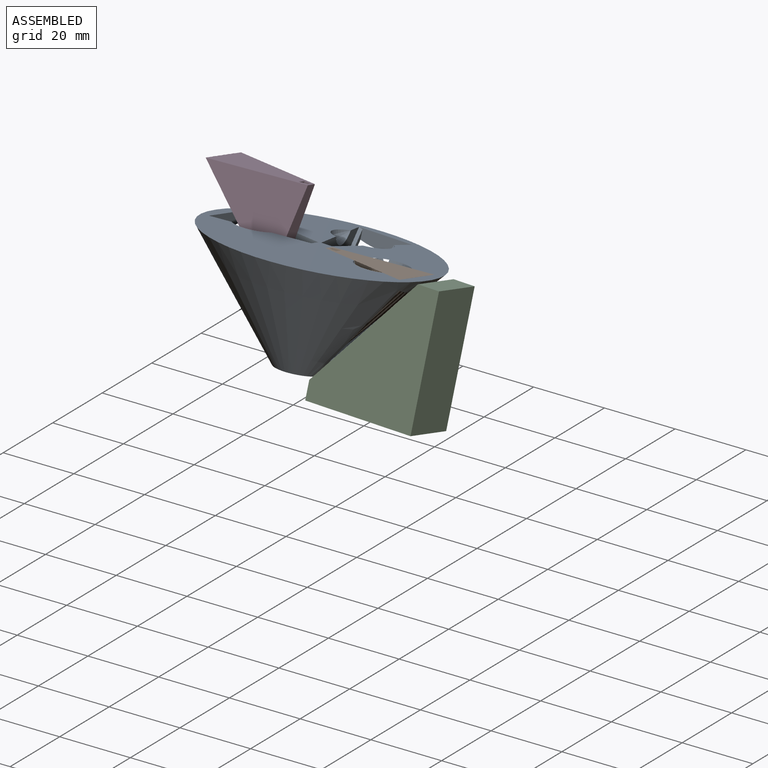
[diagram: assembled view]
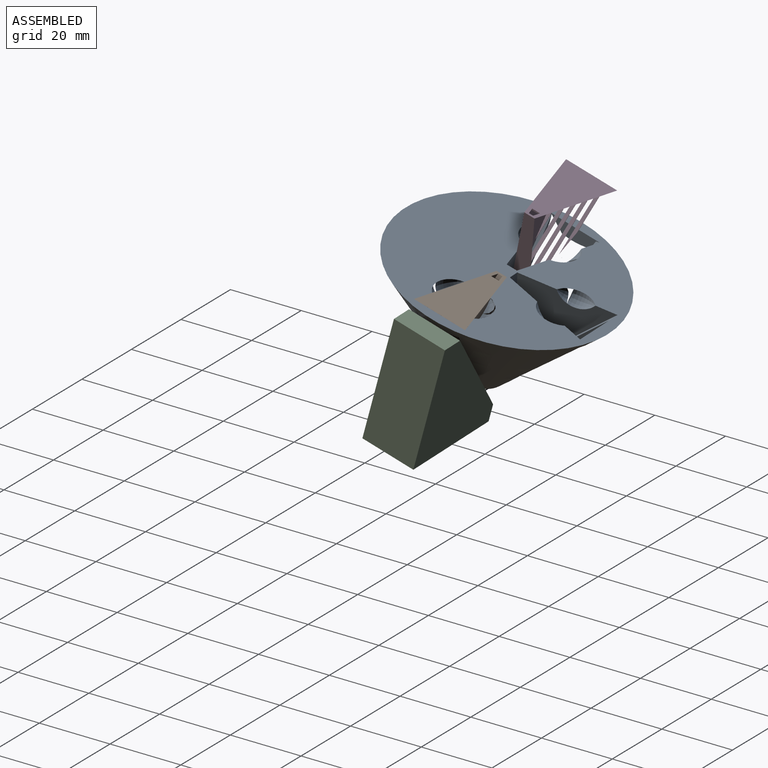
[diagram: assembled view, second angle]
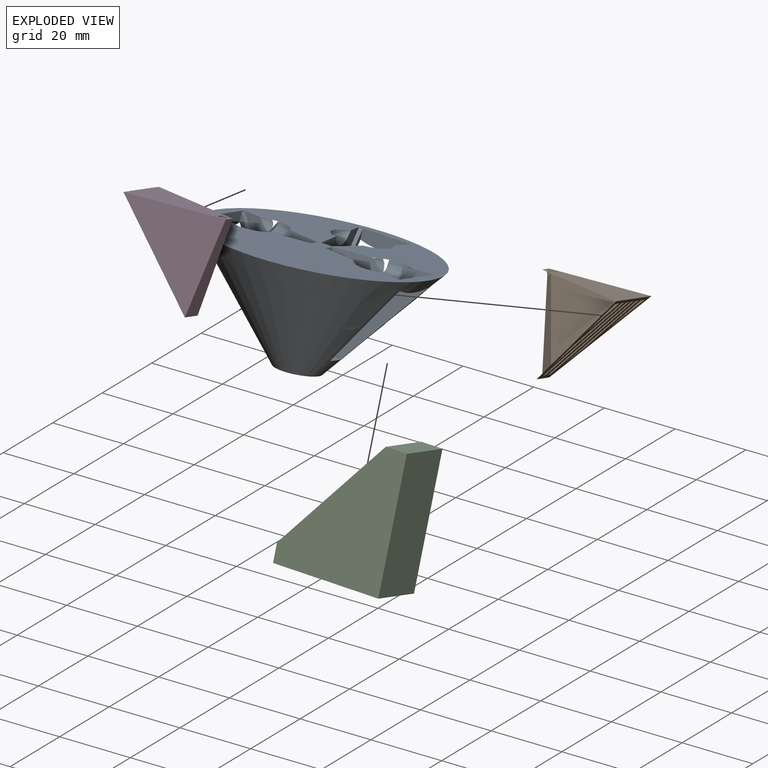
[diagram: exploded view]
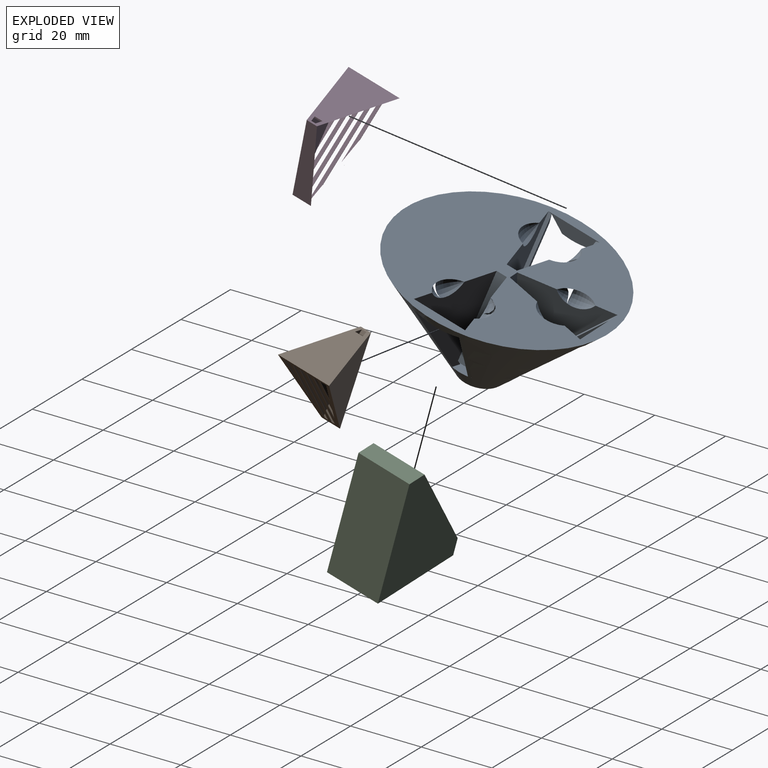
[diagram: exploded view, second angle]
ASSEMBLY  parts=4 mates=5
PART A: 42 faces, bbox 68.9x68.9x41.8 mm
  f0: plane 25x25mm, normal (-0.23,-0.97,0), area 301.2mm2, adj f9,f15,f22,f39
  f1: plane 25x25mm, normal (0.97,0.23,0), area 301.2mm2, adj f9,f17,f21,f33
  f2: plane 18.3x7.03mm, normal (0,-1,0), area 44.7mm2, adj f8,f9,f30,f31,f32,f33,f34,f35
  f3: plane 25x25mm, normal (-0.97,0.23,0), area 301.2mm2, adj f9,f18,f21,f30
  f4: plane 25x25mm, normal (0.23,0.97,0), area 301.2mm2, adj f9,f20,f23,f27
  f5: plane 18.3x7.03mm, normal (-1,0,0), area 44.7mm2, adj f8,f9,f24,f25,f26,f27,f28,f29
  f6: plane 25x25mm, normal (0.23,-0.97,0), area 301.2mm2, adj f9,f19,f23,f25
  f7: plane 6.57x3mm, normal (0,0,1), area 12.1mm2, adj f8,f22,f36,f37,f38,f39,f40,f41
  f8: cone r=30mm half-angle=38.7deg, axis (0,0,1), area 3377.1mm2, adj f2,f5,f7,f9,f10,f11,f13,f14
  f9: plane 68.93x68.93mm, normal (0,0,1), area 2031.4mm2, adj f0,f1,f2,f3,f4,f5,f6,f8
  f10: plane 12x12mm, normal (0,0,-1), area 113.1mm2, adj f8
  f11: plane 15.84x4.58mm, normal (1,0,0), area 44.7mm2, adj f8,f9,f36,f37,f38,f39,f40,f41
  f12: plane 25x25mm, normal (-0.23,0.97,0), area 301.2mm2, adj f9,f16,f22,f37
  f13: plane 6.57x3mm, normal (0,0,1), area 12.1mm2, adj f8,f21,f30,f31,f32,f33,f34,f35
  f14: plane 6.57x3mm, normal (0,0,1), area 12.1mm2, adj f8,f23,f24,f25,f26,f27,f28,f29
  f15: revolved ~9.72x5.86mm, area 69.4mm2, adj f0,f9
  f16: revolved ~9.72x5.86mm, area 71.7mm2, adj f9,f12
  f17: revolved ~9.72x5.86mm, area 71.7mm2, adj f1,f9
  f18: revolved ~9.72x5.86mm, area 69.4mm2, adj f3,f9
  f19: revolved ~9.72x5.86mm, area 71.7mm2, adj f6,f9
  f20: revolved ~9.72x5.86mm, area 69.4mm2, adj f4,f9
  f21: plane 25x5.4mm, normal (0,0.98,0.2), area 107.1mm2, adj f1,f3,f9,f13
  f22: plane 25x5.4mm, normal (-0.98,0,0.2), area 107.1mm2, adj f0,f7,f9,f12
  f23: plane 25x5.4mm, normal (0.98,0,0.2), area 107.1mm2, adj f4,f6,f9,f14
  f24: plane 23.1x18.13mm, normal (0.76,0.18,-0.63), area 28.7mm2, adj f5,f8,f14,f26
  f25: plane 25x20mm, normal (-0.75,-0.18,0.64), area 32.2mm2, adj f5,f6,f14,f26
  f26: plane 24.71x19.77mm, normal (0.23,-0.97,0), area 53.1mm2, adj f5,f14,f24,f25
  f27: plane 25x20mm, normal (-0.75,0.18,0.64), area 32.2mm2, adj f4,f5,f14,f29
  f28: plane 23.1x18.13mm, normal (0.76,-0.18,-0.63), area 28.7mm2, adj f5,f8,f14,f29
  f29: plane 24.71x19.77mm, normal (0.23,0.97,0), area 53.1mm2, adj f5,f14,f27,f28
  f30: plane 25x20mm, normal (-0.18,-0.75,0.64), area 32.2mm2, adj f2,f3,f13,f32
  f31: plane 23.1x18.13mm, normal (0.18,0.76,-0.63), area 28.7mm2, adj f2,f8,f13,f32
  f32: plane 24.71x19.77mm, normal (-0.97,0.23,0), area 53.1mm2, adj f2,f13,f30,f31
  f33: plane 25x20mm, normal (0.18,-0.75,0.64), area 32.2mm2, adj f1,f2,f13,f35
  f34: plane 23.1x18.13mm, normal (-0.18,0.76,-0.63), area 28.7mm2, adj f2,f8,f13,f35
  f35: plane 24.71x19.77mm, normal (0.97,0.23,0), area 53.1mm2, adj f2,f13,f33,f34
  f36: plane 23.1x18.13mm, normal (-0.76,-0.18,-0.63), area 28.7mm2, adj f7,f8,f11,f38
  f37: plane 25x20mm, normal (0.75,0.18,0.64), area 32.2mm2, adj f7,f11,f12,f38
  f38: plane 24.71x19.77mm, normal (-0.23,0.97,0), area 53.1mm2, adj f7,f11,f36,f37
  f39: plane 25x20mm, normal (0.75,-0.18,0.64), area 32.2mm2, adj f0,f7,f11,f41
  f40: plane 23.1x18.13mm, normal (-0.76,0.18,-0.63), area 28.7mm2, adj f7,f8,f11,f41
  f41: plane 24.71x19.77mm, normal (-0.23,-0.97,0), area 53.1mm2, adj f7,f11,f39,f40
PART B: 53 faces, bbox 15x25x25.1 mm
  f0: plane 25x15mm, normal (0,0,1), area 220.7mm2, adj f2,f3,f5,f6,f7,f8,f9,f10
  f1: plane 20.48x12.56mm, normal (0,0,-1), area 155.9mm2, adj f2,f6,f8,f11,f12,f13,f14,f19
  f2: plane 23.85x23.56mm, normal (-0.97,-0.23,0), area 272.6mm2, adj f0,f1,f4,f6,f9,f10,f11,f19
  f3: plane 25x25mm, normal (0.97,0.23,0), area 321.4mm2, adj f0,f6,f7,f43,f44,f45
  f4: plane 22.98x4.6mm, normal (0,-0.98,0.2), area 61.5mm2, adj f2,f6,f8,f10,f12,f13,f14,f19
  f5: plane 25x25mm, normal (-0.97,0.23,0), area 321.4mm2, adj f0,f6,f7,f36,f37,f38
  f6: plane 25x20mm, normal (0,-0.78,-0.62), area 202.8mm2, adj f0,f1,f2,f3,f4,f5,f7,f8
  f7: plane 25x5.4mm, normal (0,0.98,-0.2), area 107.1mm2, adj f0,f3,f5,f6
  f8: plane 23.85x23.56mm, normal (0.97,-0.23,0), area 272.6mm2, adj f0,f1,f4,f6,f9,f10,f11,f26
  f9: plane 2.25x0.42mm, normal (0,1,0), area 1mm2, adj f0,f2,f8,f11
  f10: plane 1.53x1mm, normal (0,-0.87,0.5), area 1.6mm2, adj f0,f2,f4,f8
  f11: plane 2.73x1mm, normal (0,0.5,-0.87), area 2.9mm2, adj f1,f2,f8,f9
  f12: plane 22.85x18.28mm, normal (0,0.78,0.62), area 29.3mm2, adj f1,f4,f13,f14
  f13: plane 22.98x18.41mm, normal (-1,0,0), area 2.9mm2, adj f1,f4,f6,f12
  f14: plane 22.98x18.41mm, normal (1,0,0), area 2.9mm2, adj f1,f4,f6,f12
  f15: plane 0.13x0.06mm, normal (1,0,0), area 0mm2, adj f0,f16,f18
  f16: plane 1x0.08mm, normal (0,-0.62,0.78), area 0.1mm2, adj f6,f15,f17,f18
  f17: plane 0.13x0.06mm, normal (-1,0,0), area 0mm2, adj f0,f16,f18
  f18: plane 1x0.06mm, normal (0,0.78,0.62), area 0.1mm2, adj f0,f15,f16,f17
  f19: plane 22.85x18.28mm, normal (0,0.78,0.62), area 27.9mm2, adj f1,f2,f4,f20,f21
  f20: plane 19.69x15.75mm, normal (1,0,0), area 2.5mm2, adj f1,f2,f6,f19
  f21: plane 22.98x18.41mm, normal (-1,0,0), area 2.9mm2, adj f1,f4,f6,f19
  f22: plane 0.13x0.06mm, normal (1,0,0), area 0mm2, adj f0,f23,f25
  f23: plane 1x0.08mm, normal (0,-0.62,0.78), area 0.1mm2, adj f6,f22,f24,f25
  f24: plane 0.13x0.06mm, normal (-1,0,0), area 0mm2, adj f0,f23,f25
  f25: plane 1x0.06mm, normal (0,0.78,0.62), area 0.1mm2, adj f0,f22,f23,f24
  f26: plane 22.85x18.28mm, normal (0,0.78,0.62), area 27.9mm2, adj f1,f4,f8,f27,f28
  f27: plane 19.69x15.75mm, normal (-1,0,0), area 2.5mm2, adj f1,f6,f8,f26
  f28: plane 22.98x18.41mm, normal (1,0,0), area 2.9mm2, adj f1,f4,f6,f26
  f29: plane 0.13x0.06mm, normal (-1,0,0), area 0mm2, adj f0,f31,f32
  f30: plane 0.13x0.06mm, normal (1,0,0), area 0mm2, adj f0,f31,f32
  f31: plane 1x0.08mm, normal (0,-0.62,0.78), area 0.1mm2, adj f6,f29,f30,f32
  f32: plane 1x0.06mm, normal (0,0.78,0.62), area 0.1mm2, adj f0,f29,f30,f31
  f33: plane 14.32x11.45mm, normal (0,0.78,0.62), area 15mm2, adj f1,f8,f34,f35
  f34: plane 14.48x11.58mm, normal (1,0,0), area 1.8mm2, adj f1,f6,f8,f33
  f35: plane 9.27x7.42mm, normal (-1,0,0), area 1.2mm2, adj f1,f6,f8,f33
  f36: plane 0.1x0.08mm, normal (0,0.78,0.62), area 0mm2, adj f5,f37,f38
  f37: plane 0.08x0.06mm, normal (0,0.62,-0.78), area 0mm2, adj f5,f36,f38
  f38: plane 0.16x0.08mm, normal (-1,0,0), area 0mm2, adj f5,f36,f37
  f39: plane 0.13x0.06mm, normal (-1,0,0), area 0mm2, adj f0,f41,f42
  f40: plane 0.13x0.06mm, normal (1,0,0), area 0mm2, adj f0,f41,f42
  f41: plane 1x0.06mm, normal (0,0.78,0.62), area 0.1mm2, adj f0,f39,f40,f42
  f42: plane 1x0.08mm, normal (0,-0.62,0.78), area 0.1mm2, adj f6,f39,f40,f41
  f43: plane 0.1x0.08mm, normal (0,0.78,0.62), area 0mm2, adj f3,f44,f45
  f44: plane 0.08x0.06mm, normal (0,0.62,-0.78), area 0mm2, adj f3,f43,f45
  f45: plane 0.16x0.08mm, normal (1,0,0), area 0mm2, adj f3,f43,f44
  f46: plane 14.32x11.45mm, normal (0,0.78,0.62), area 15mm2, adj f1,f2,f47,f48
  f47: plane 14.48x11.58mm, normal (-1,0,0), area 1.8mm2, adj f1,f2,f6,f46
  f48: plane 9.27x7.42mm, normal (1,0,0), area 1.2mm2, adj f1,f2,f6,f46
  f49: plane 1x0.06mm, normal (0,0.78,0.62), area 0.1mm2, adj f0,f50,f51,f52
  f50: plane 0.13x0.06mm, normal (1,0,0), area 0mm2, adj f0,f49,f52
  f51: plane 0.13x0.06mm, normal (-1,0,0), area 0mm2, adj f0,f49,f52
  f52: plane 1x0.08mm, normal (0,-0.62,0.78), area 0.1mm2, adj f6,f49,f50,f51
PART C: 11 faces, bbox 30x15x35 mm
  f0: plane 30x15mm, normal (0,0,-1), area 86mm2, adj f3,f4,f5,f6,f7,f8,f9,f10
  f1: plane 30x24mm, normal (-0.78,0,0.62), area 114.3mm2, adj f2,f3,f4,f5,f7,f8,f9,f10
  f2: plane 15x6mm, normal (0,0,1), area 90mm2, adj f1,f4,f5,f6
  f3: plane 15x5mm, normal (-1,0,0), area 75mm2, adj f0,f1,f4,f5
  f4: plane 35x30mm, normal (0,-1,0), area 690mm2, adj f0,f1,f2,f3,f6
  f5: plane 35x30mm, normal (0,1,0), area 690mm2, adj f0,f1,f2,f3,f6
  f6: plane 35x15mm, normal (1,0,0), area 525mm2, adj f0,f2,f4,f5
  f7: plane 13x6.25mm, normal (1,0,0), area 81.2mm2, adj f0,f1,f8,f9
  f8: plane 34x28mm, normal (0,1,0), area 545.4mm2, adj f0,f1,f7,f10
  f9: plane 34x28mm, normal (0,-1,0), area 545.4mm2, adj f0,f1,f7,f10
  f10: plane 34x13mm, normal (-0.99,0,-0.17), area 448.4mm2, adj f0,f1,f8,f9
PART D: same geometry as B
PLACE A rot(axis=(-0.99,0.12,0),16.4deg) t=(8.49,-27.54,-12.2)mm
PLACE B rot(axis=(-0.12,0.16,0.98),91.2deg) t=(35.65,-26.28,-8.33)mm
PLACE C rot(axis=(-0.99,0.12,-0.02),16.4deg) t=(30.56,-27.42,-18.24)mm
PLACE D rot(axis=(-0.16,-0.12,-0.98),91.2deg) t=(-21.29,-23.12,6.48)mm
MATE planar B.f7 <-> A.f23  axis (-0.99,-0.05,-0.15) through (13.79,-23.01,3.29)mm
MATE planar B.f5 <-> A.f4  axis (-0.23,-0.93,0.28) through (21.26,-25.29,9.27)mm
MATE planar A.f12 <-> D.f3  axis (-0.24,0.93,-0.26) through (-11.92,-24.98,19.06)mm
MATE planar A.f9 <-> C.f2  axis (0.03,0.28,0.96) through (21.28,-15.52,15.11)mm
MATE planar B.f0 <-> A.f9  axis (0.03,0.28,0.96) through (26.99,-19.24,15.99)mm
